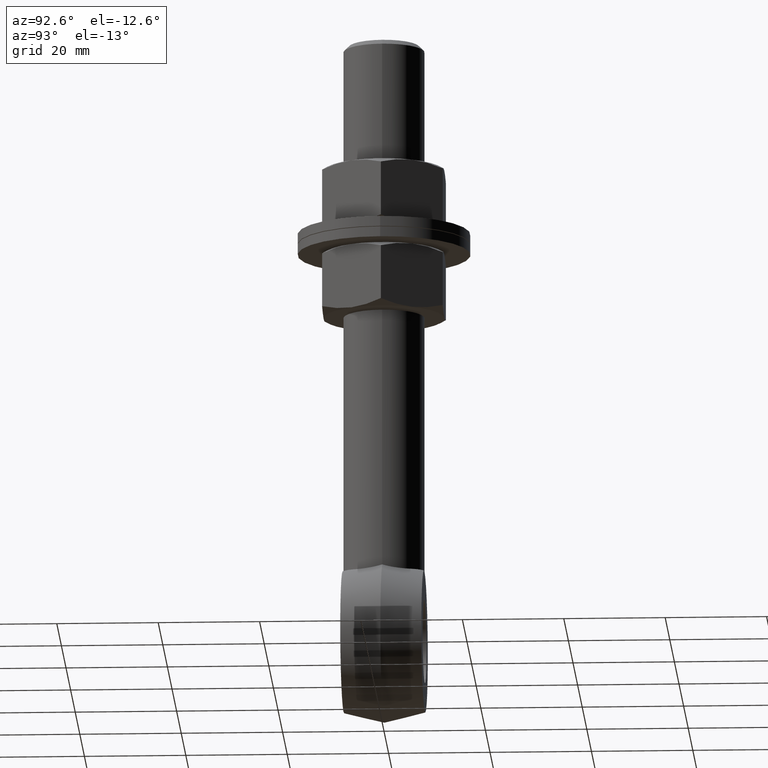
[diagram: clean part render]
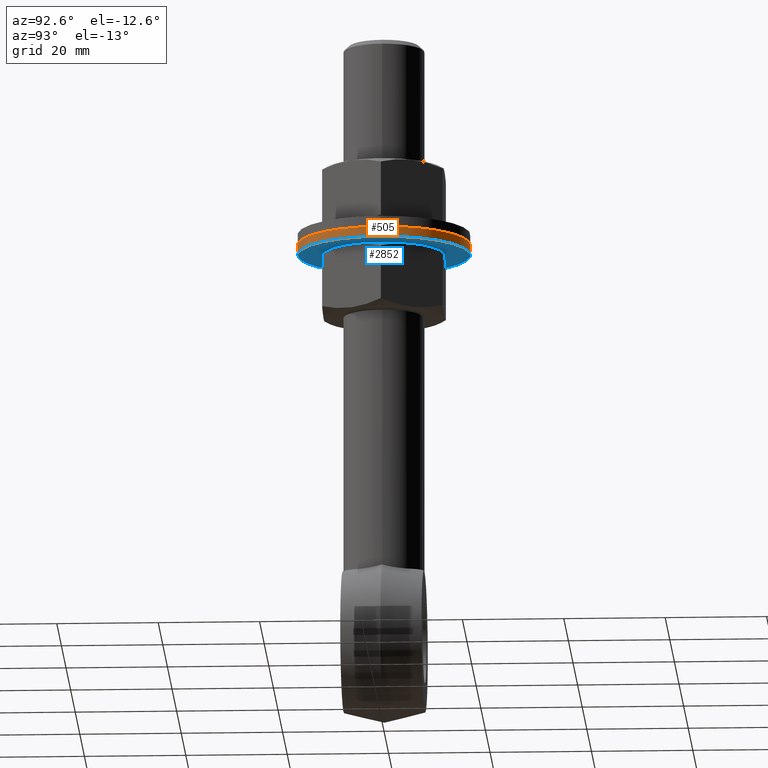
[diagram: same view with the hole feature highlighted: cylindrical wall and planar end face, labeled with their STEP entity ids]
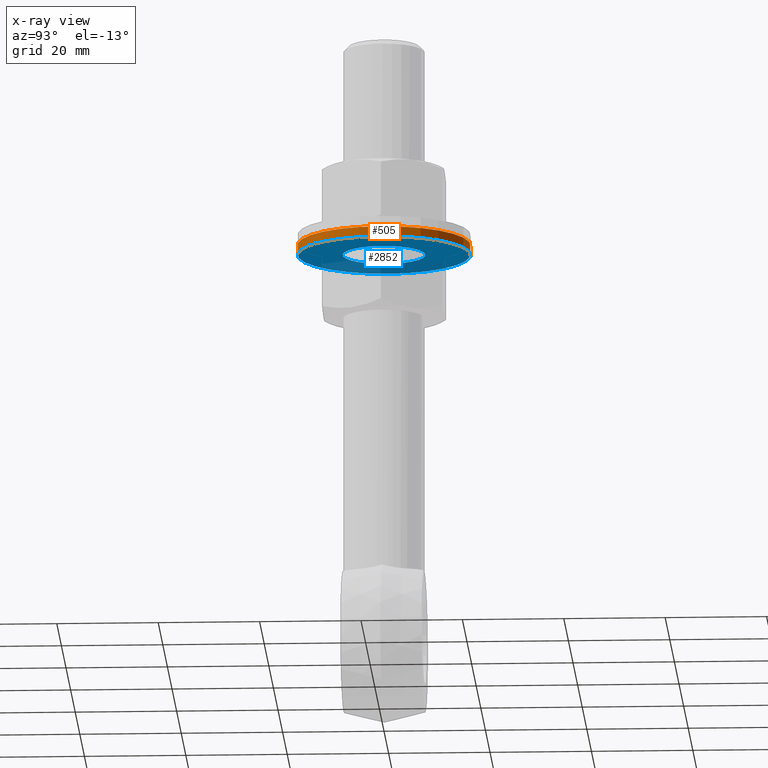
[diagram: x-ray of the same camera — body ghosted, the hole faces saturated]
A machine part, auxiliary view. The highlighted faces form one hole feature of diameter 34.1 mm: the cylindrical wall (entity #505, orange) and its adjacent planar end face (entity #2852, blue) — they share a circular edge in the B-rep.
The next image is the same camera in x-ray (body ghosted, the hole faces saturated) — the bore reads through the body.
Wall:
#107 = ORIENTED_EDGE ( 'NONE', *, *, #3727, .F. ) ;
#485 = EDGE_CURVE ( 'NONE', #824, #824, #2373, .T. ) ;
#505 = ADVANCED_FACE ( 'NONE', ( #959, #4064 ), #5175, .T. ) ;
#591 = CARTESIAN_POINT ( 'NONE',  ( 0.000000000000000000, 0.000000000000000000, -1.000000000000000888 ) ) ;
#768 = EDGE_LOOP ( 'NONE', ( #4256 ) ) ;
#824 = VERTEX_POINT ( 'NONE', #1756 ) ;
#959 = FACE_OUTER_BOUND ( 'NONE', #4371, .T. ) ;
#1061 = DIRECTION ( 'NONE',  ( 0.000000000000000000, 0.000000000000000000, 1.000000000000000000 ) ) ;
#1149 = DIRECTION ( 'NONE',  ( 1.000000000000000000, 0.000000000000000000, 0.000000000000000000 ) ) ;
#1592 = DIRECTION ( 'NONE',  ( -1.000000000000000000, 0.000000000000000000, 0.000000000000000000 ) ) ;
#1742 = CARTESIAN_POINT ( 'NONE',  ( 17.05000000000000071, 0.000000000000000000, 1.000000000000000888 ) ) ;
#1756 = CARTESIAN_POINT ( 'NONE',  ( 17.05000000000000071, 0.000000000000000000, -1.000000000000000888 ) ) ;
#1864 = VERTEX_POINT ( 'NONE', #1742 ) ;
#1984 = DIRECTION ( 'NONE',  ( 1.000000000000000000, 0.000000000000000000, 0.000000000000000000 ) ) ;
#2373 = CIRCLE ( 'NONE', #4343, 17.05000000000000071 ) ;
#3058 = DIRECTION ( 'NONE',  ( 0.000000000000000000, 0.000000000000000000, 1.000000000000000000 ) ) ;
#3498 = CARTESIAN_POINT ( 'NONE',  ( 0.000000000000000000, 0.000000000000000000, 1.000000000000000888 ) ) ;
#3727 = EDGE_CURVE ( 'NONE', #1864, #1864, #4996, .T. ) ;
#4064 = FACE_OUTER_BOUND ( 'NONE', #768, .T. ) ;
#4256 = ORIENTED_EDGE ( 'NONE', *, *, #485, .T. ) ;
#4343 = AXIS2_PLACEMENT_3D ( 'NONE', #591, #1061, #1984 ) ;
#4371 = EDGE_LOOP ( 'NONE', ( #107 ) ) ;
#4404 = DIRECTION ( 'NONE',  ( -0.000000000000000000, -0.000000000000000000, -1.000000000000000000 ) ) ;
#4420 = AXIS2_PLACEMENT_3D ( 'NONE', #4905, #4404, #1592 ) ;
#4905 = CARTESIAN_POINT ( 'NONE',  ( 0.000000000000000000, 0.000000000000000000, 1.000000000000000888 ) ) ;
#4996 = CIRCLE ( 'NONE', #5752, 17.05000000000000071 ) ;
#5175 = CYLINDRICAL_SURFACE ( 'NONE', #4420, 17.05000000000000071 ) ;
#5752 = AXIS2_PLACEMENT_3D ( 'NONE', #3498, #3058, #1149 ) ;
End face:
#1 = CARTESIAN_POINT ( 'NONE',  ( 0.000000000000000000, 0.000000000000000000, -1.000000000000000888 ) ) ;
#393 = ORIENTED_EDGE ( 'NONE', *, *, #485, .F. ) ;
#485 = EDGE_CURVE ( 'NONE', #824, #824, #2373, .T. ) ;
#500 = DIRECTION ( 'NONE',  ( 0.000000000000000000, 0.000000000000000000, 1.000000000000000000 ) ) ;
#591 = CARTESIAN_POINT ( 'NONE',  ( 0.000000000000000000, 0.000000000000000000, -1.000000000000000888 ) ) ;
#654 = PLANE ( 'NONE',  #4822 ) ;
#824 = VERTEX_POINT ( 'NONE', #1756 ) ;
#1061 = DIRECTION ( 'NONE',  ( 0.000000000000000000, 0.000000000000000000, 1.000000000000000000 ) ) ;
#1756 = CARTESIAN_POINT ( 'NONE',  ( 17.05000000000000071, 0.000000000000000000, -1.000000000000000888 ) ) ;
#1984 = DIRECTION ( 'NONE',  ( 1.000000000000000000, 0.000000000000000000, 0.000000000000000000 ) ) ;
#2373 = CIRCLE ( 'NONE', #4343, 17.05000000000000071 ) ;
#2379 = ORIENTED_EDGE ( 'NONE', *, *, #6051, .T. ) ;
#2530 = CARTESIAN_POINT ( 'NONE',  ( 0.000000000000000000, 0.000000000000000000, -1.000000000000000888 ) ) ;
#2682 = CIRCLE ( 'NONE', #6129, 8.150000000000000355 ) ;
#2852 = ADVANCED_FACE ( 'NONE', ( #4530, #6032 ), #654, .F. ) ;
#2937 = EDGE_LOOP ( 'NONE', ( #2379 ) ) ;
#4054 = CARTESIAN_POINT ( 'NONE',  ( 8.150000000000000355, 0.000000000000000000, -1.000000000000000888 ) ) ;
#4275 = DIRECTION ( 'NONE',  ( 1.000000000000000000, 0.000000000000000000, 0.000000000000000000 ) ) ;
#4343 = AXIS2_PLACEMENT_3D ( 'NONE', #591, #1061, #1984 ) ;
#4530 = FACE_OUTER_BOUND ( 'NONE', #5433, .T. ) ;
#4659 = VERTEX_POINT ( 'NONE', #4054 ) ;
#4822 = AXIS2_PLACEMENT_3D ( 'NONE', #2530, #5404, #4946 ) ;
#4946 = DIRECTION ( 'NONE',  ( 1.000000000000000000, 0.000000000000000000, -0.000000000000000000 ) ) ;
#5404 = DIRECTION ( 'NONE',  ( 0.000000000000000000, 0.000000000000000000, 1.000000000000000000 ) ) ;
#5433 = EDGE_LOOP ( 'NONE', ( #393 ) ) ;
#6032 = FACE_BOUND ( 'NONE', #2937, .T. ) ;
#6051 = EDGE_CURVE ( 'NONE', #4659, #4659, #2682, .T. ) ;
#6129 = AXIS2_PLACEMENT_3D ( 'NONE', #1, #500, #4275 ) ;